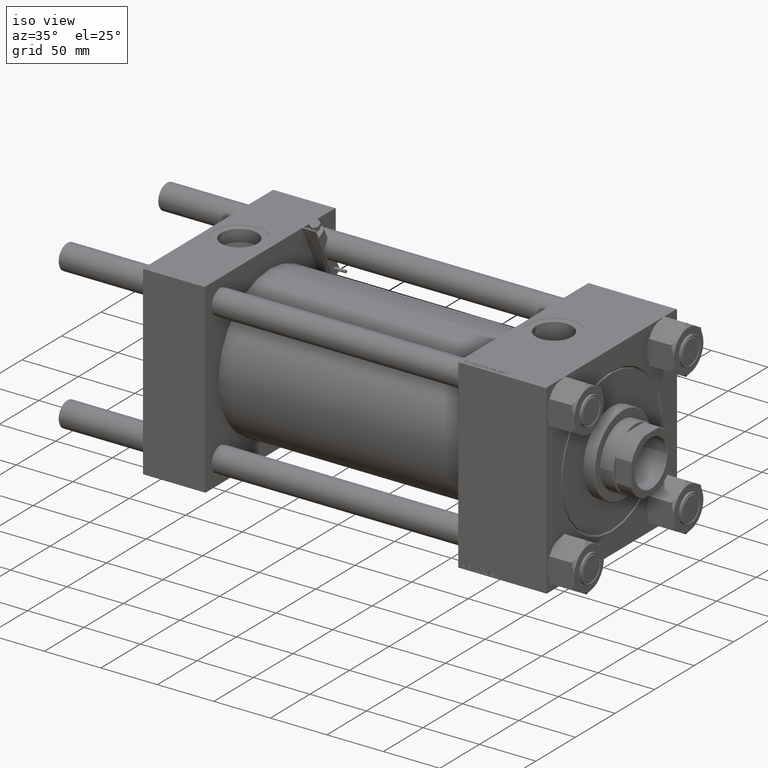
[diagram: clean part render]
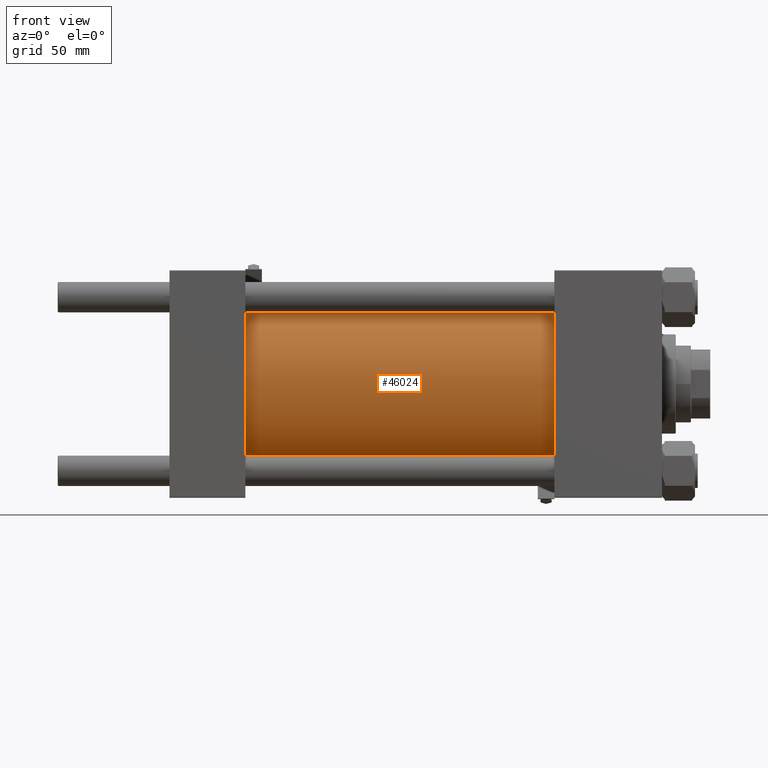
[diagram: tour spotlight — one face highlighted and labeled with its STEP entity id]
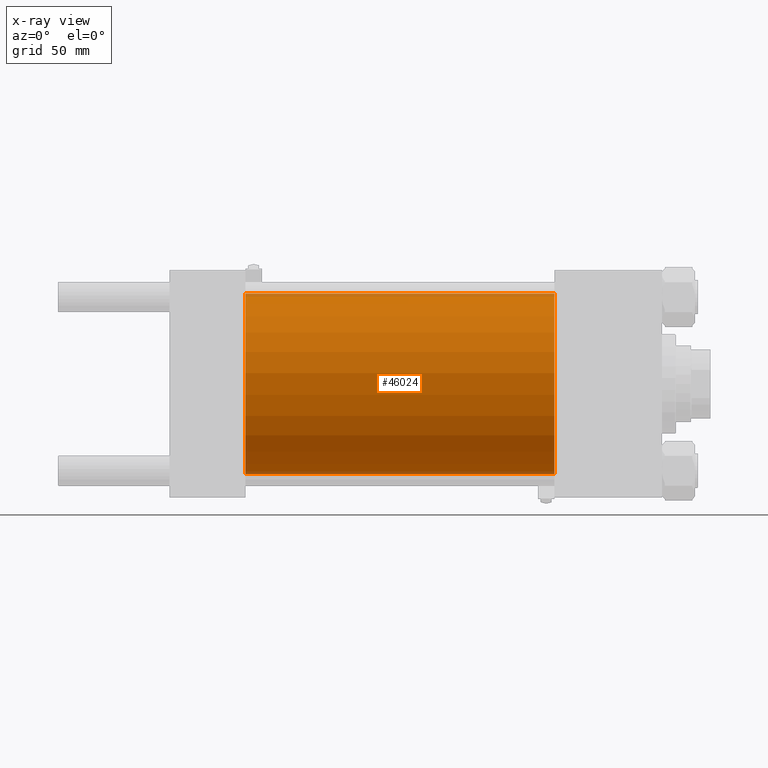
[diagram: x-ray of the same camera — body ghosted, this tour face saturated]
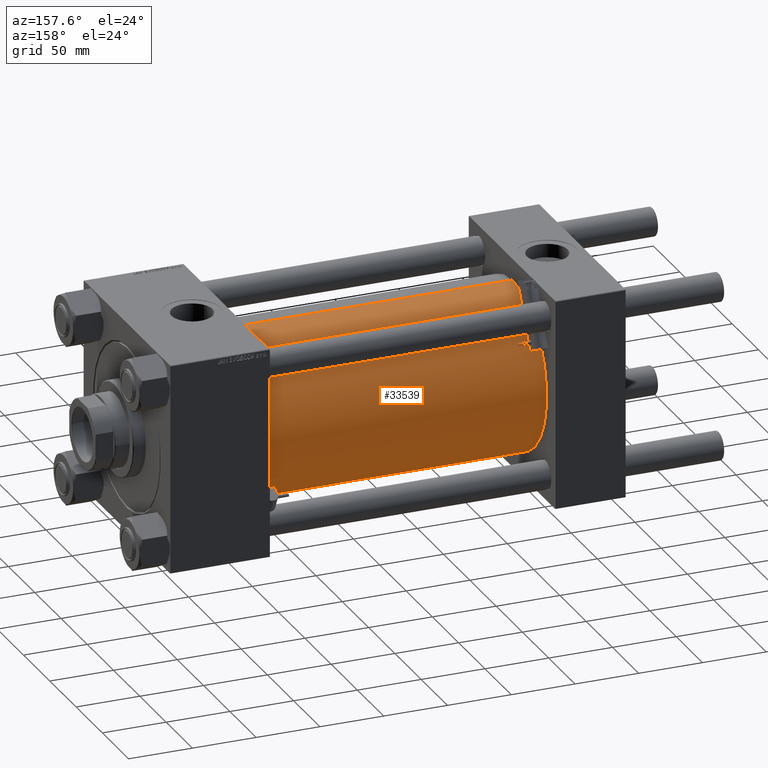
[diagram: tour spotlight — one face highlighted and labeled with its STEP entity id]
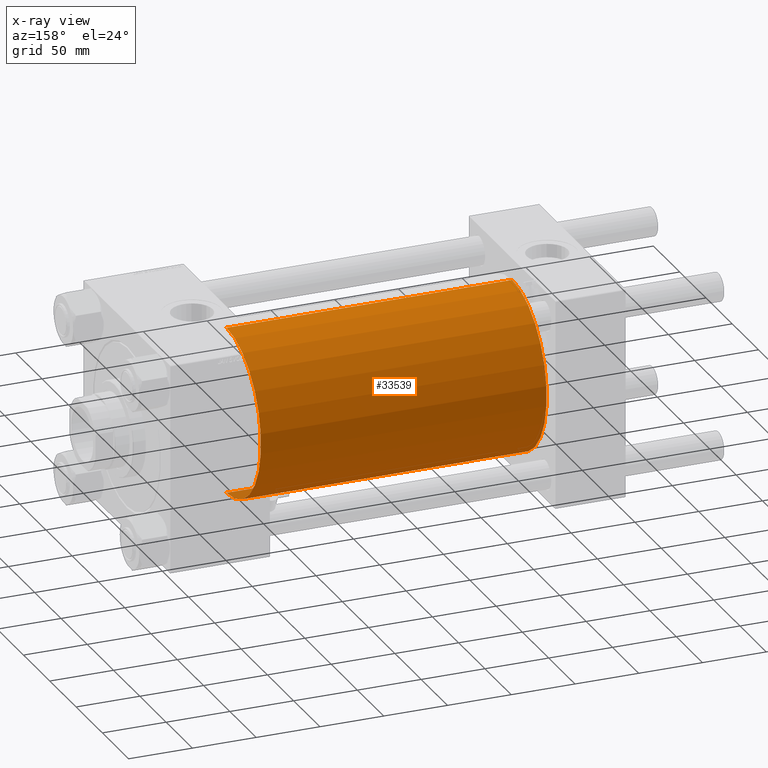
[diagram: x-ray of the same camera — body ghosted, this tour face saturated]
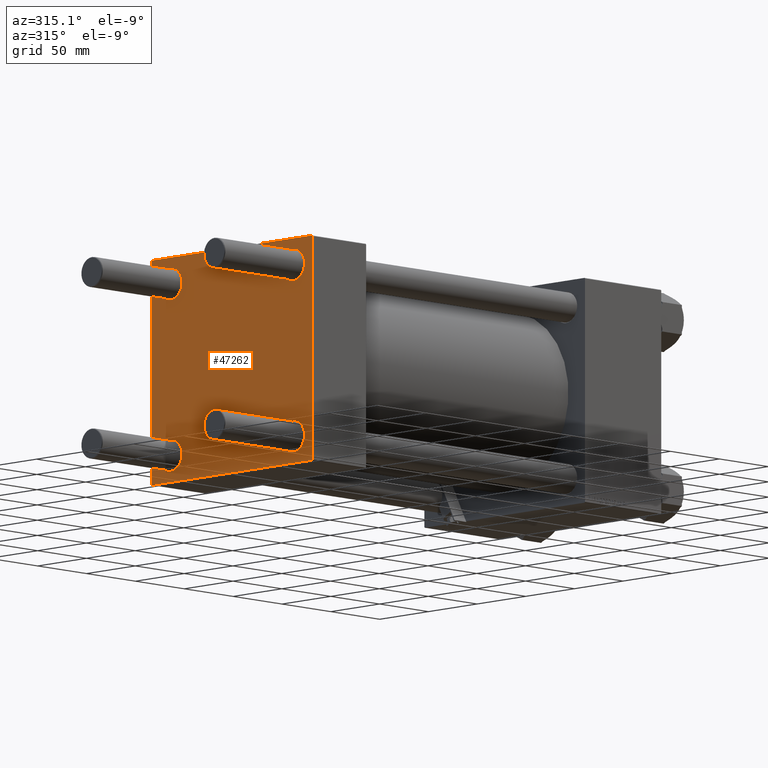
[diagram: tour spotlight — one face highlighted and labeled with its STEP entity id]
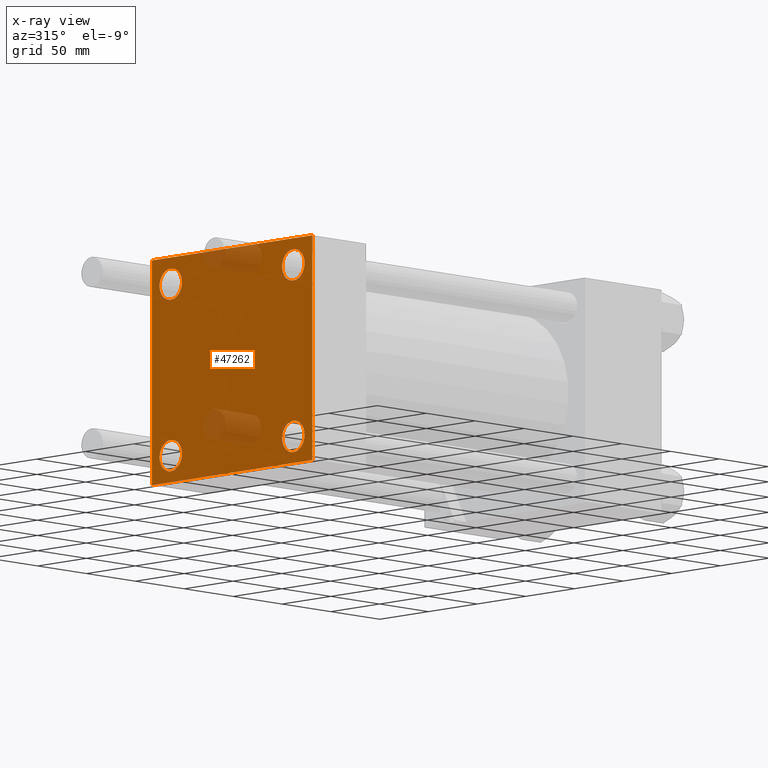
[diagram: x-ray of the same camera — body ghosted, this tour face saturated]
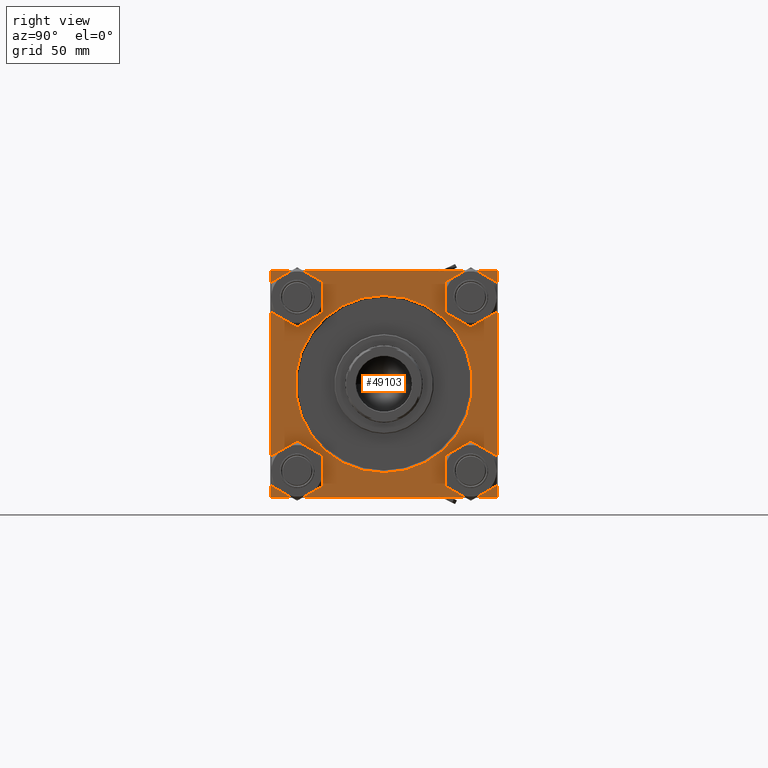
[diagram: tour spotlight — one face highlighted and labeled with its STEP entity id]
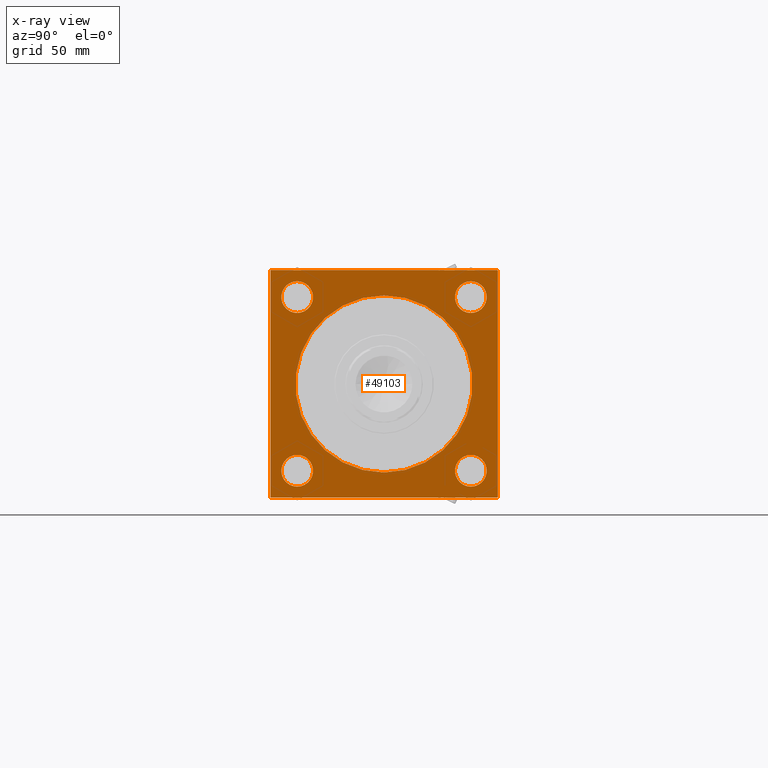
[diagram: x-ray of the same camera — body ghosted, this tour face saturated]
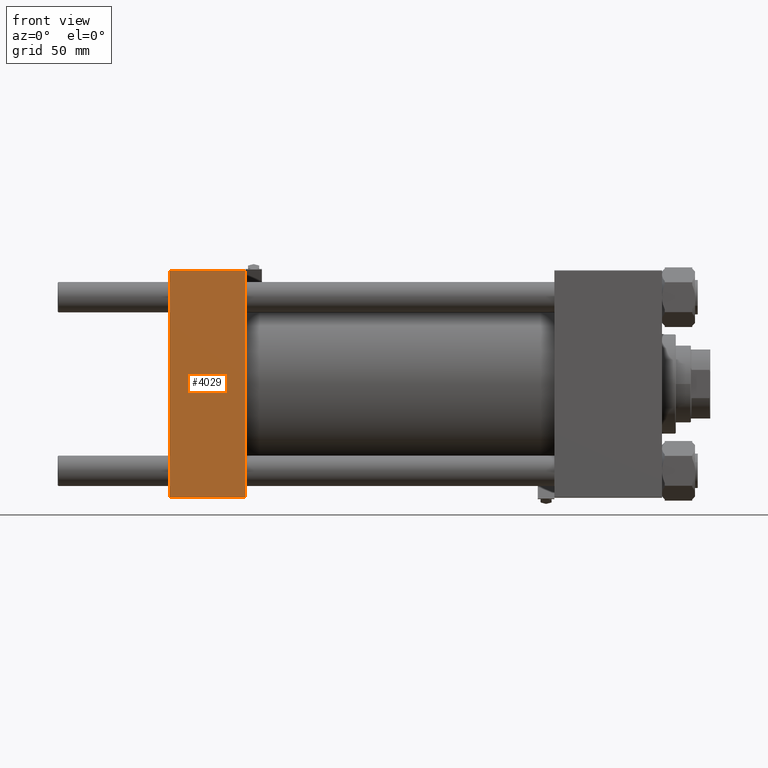
[diagram: tour spotlight — one face highlighted and labeled with its STEP entity id]
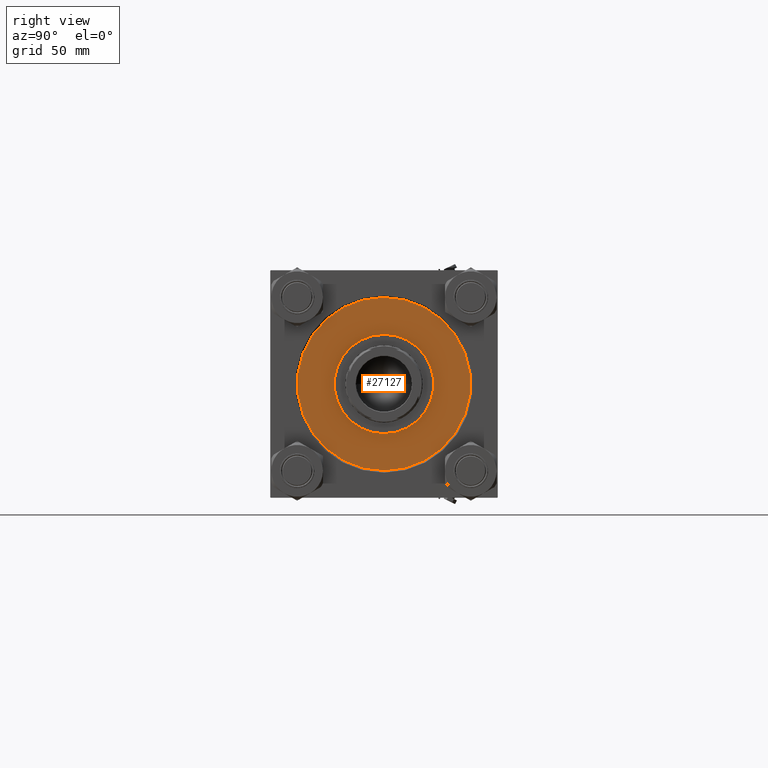
[diagram: tour spotlight — one face highlighted and labeled with its STEP entity id]
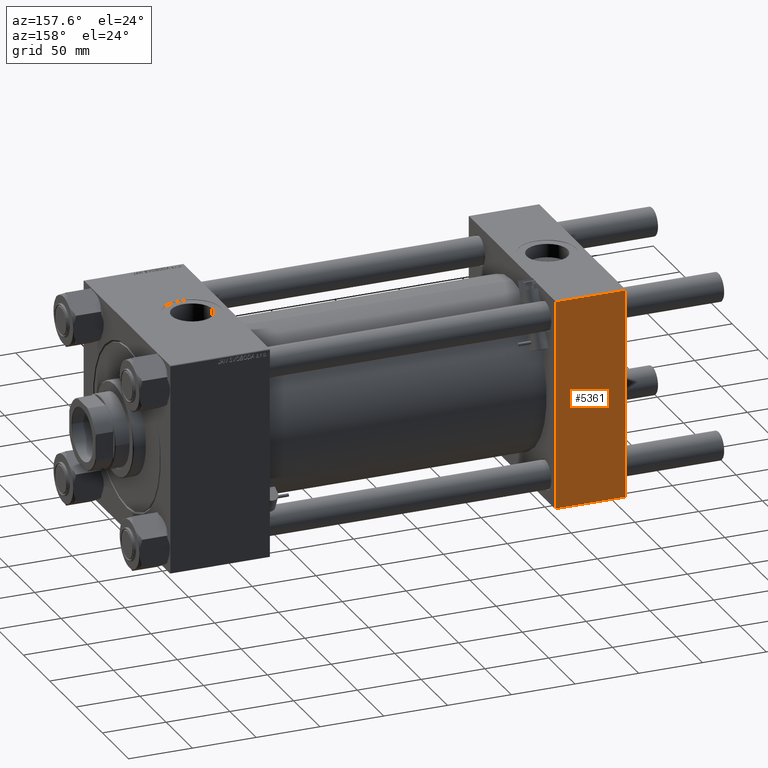
[diagram: tour spotlight — one face highlighted and labeled with its STEP entity id]
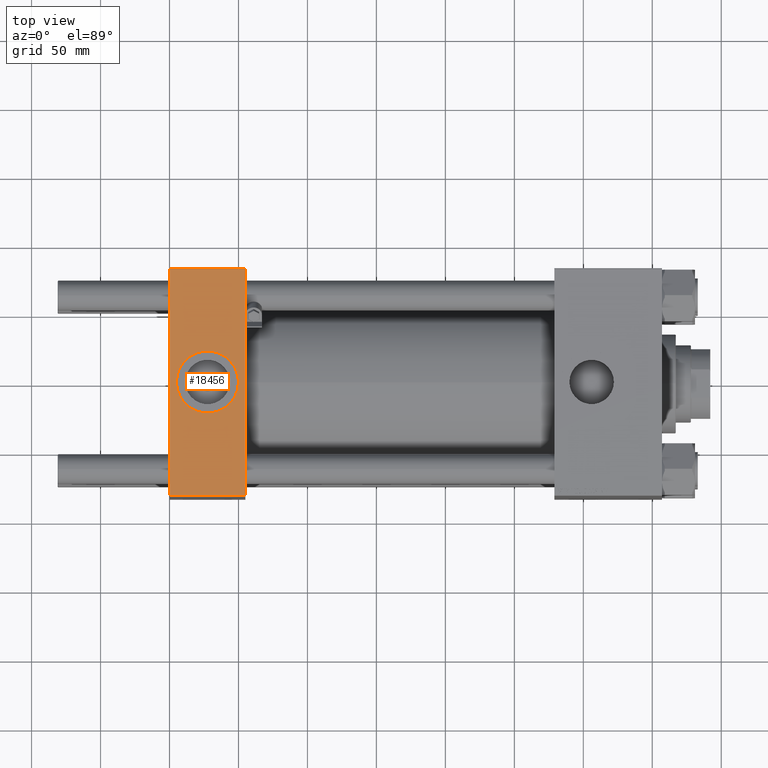
[diagram: tour spotlight — one face highlighted and labeled with its STEP entity id]
A machine part: a face-by-face anatomy tour. The part has 1246 B-rep faces; the first image is the clean iso view, then the 8 largest visible faces are spotlighted one at a time (largest first), each with its STEP entity span.

Face 1 — front view, entity #46024. An x-ray twin of the same camera follows (body ghosted, this face saturated) — the face is partly hidden behind the body. In plain terms, the highlighted cylindrical surface (partial cylindrical patch) has radius 65.5 mm, axis along (-1, -0, -0).
Definition (entity closure, byte-faithful):
#3282 = CARTESIAN_POINT ( 'NONE',  ( 279.0000000000000000, 0.000000000000000000, 65.50000000000001421 ) ) ;
#4642 = LINE ( 'NONE', #15330, #18794 ) ;
#5953 = DIRECTION ( 'NONE',  ( 1.000000000000000000, 0.000000000000000000, 0.000000000000000000 ) ) ;
#9135 = CIRCLE ( 'NONE', #49007, 65.50000000000001421 ) ;
#10547 = DIRECTION ( 'NONE',  ( 0.000000000000000000, 0.000000000000000000, 1.000000000000000000 ) ) ;
#11454 = VECTOR ( 'NONE', #12212, 1000.000000000000000 ) ;
#11649 = EDGE_CURVE ( 'NONE', #47961, #24389, #19752, .T. ) ;
#12212 = DIRECTION ( 'NONE',  ( -1.000000000000000000, -0.000000000000000000, -0.000000000000000000 ) ) ;
#12239 = VERTEX_POINT ( 'NONE', #3282 ) ;
#13757 = DIRECTION ( 'NONE',  ( 0.000000000000000000, 0.000000000000000000, -1.000000000000000000 ) ) ;
#14253 = CARTESIAN_POINT ( 'NONE',  ( 54.99999999999999289, 8.021436534415166404E-15, -65.50000000000001421 ) ) ;
#14706 = DIRECTION ( 'NONE',  ( 1.000000000000000000, -0.000000000000000000, -0.000000000000000000 ) ) ;
#15330 = CARTESIAN_POINT ( 'NONE',  ( 279.0000000000000000, 0.000000000000000000, 65.50000000000001421 ) ) ;
#16454 = AXIS2_PLACEMENT_3D ( 'NONE', #30366, #45459, #42072 ) ;
#18667 = CYLINDRICAL_SURFACE ( 'NONE', #16454, 65.50000000000001421 ) ;
#18794 = VECTOR ( 'NONE', #31177, 1000.000000000000000 ) ;
#18864 = CARTESIAN_POINT ( 'NONE',  ( 54.99999999999999289, 0.000000000000000000, 0.000000000000000000 ) ) ;
#19752 = LINE ( 'NONE', #31715, #11454 ) ;
#21210 = ORIENTED_EDGE ( 'NONE', *, *, #29813, .T. ) ;
#22748 = CIRCLE ( 'NONE', #34383, 65.50000000000001421 ) ;
#24389 = VERTEX_POINT ( 'NONE', #14253 ) ;
#28887 = ORIENTED_EDGE ( 'NONE', *, *, #50558, .F. ) ;
#29813 = EDGE_CURVE ( 'NONE', #40859, #24389, #22748, .T. ) ;
#30366 = CARTESIAN_POINT ( 'NONE',  ( 279.0000000000000000, 0.000000000000000000, 0.000000000000000000 ) ) ;
#31177 = DIRECTION ( 'NONE',  ( -1.000000000000000000, -0.000000000000000000, -0.000000000000000000 ) ) ;
#31715 = CARTESIAN_POINT ( 'NONE',  ( 279.0000000000000000, 8.021436534415166404E-15, -65.50000000000001421 ) ) ;
#34383 = AXIS2_PLACEMENT_3D ( 'NONE', #18864, #14706, #10547 ) ;
#37918 = FACE_OUTER_BOUND ( 'NONE', #44666, .T. ) ;
#37943 = CARTESIAN_POINT ( 'NONE',  ( 279.0000000000000000, 8.021436534415166404E-15, -65.50000000000001421 ) ) ;
#40859 = VERTEX_POINT ( 'NONE', #48176 ) ;
#41495 = EDGE_CURVE ( 'NONE', #12239, #40859, #4642, .T. ) ;
#42072 = DIRECTION ( 'NONE',  ( 0.000000000000000000, 0.000000000000000000, 1.000000000000000000 ) ) ;
#44666 = EDGE_LOOP ( 'NONE', ( #47553, #28887, #47849, #21210 ) ) ;
#45459 = DIRECTION ( 'NONE',  ( -1.000000000000000000, -0.000000000000000000, -0.000000000000000000 ) ) ;
#46024 = ADVANCED_FACE ( 'NONE', ( #37918 ), #18667, .T. ) ;
#47553 = ORIENTED_EDGE ( 'NONE', *, *, #11649, .F. ) ;
#47849 = ORIENTED_EDGE ( 'NONE', *, *, #41495, .T. ) ;
#47961 = VERTEX_POINT ( 'NONE', #37943 ) ;
#48176 = CARTESIAN_POINT ( 'NONE',  ( 54.99999999999999289, 0.000000000000000000, 65.50000000000001421 ) ) ;
#49007 = AXIS2_PLACEMENT_3D ( 'NONE', #49374, #5953, #13757 ) ;
#49374 = CARTESIAN_POINT ( 'NONE',  ( 279.0000000000000000, 0.000000000000000000, 0.000000000000000000 ) ) ;
#50558 = EDGE_CURVE ( 'NONE', #12239, #47961, #9135, .T. ) ;

Face 2 — auxiliary view, entity #33539. An x-ray twin of the same camera follows (body ghosted, this face saturated) — the face is partly hidden behind the body. In plain terms, the highlighted cylindrical surface (partial cylindrical patch) has radius 65.5 mm, axis along (-1, -0, -0).
Definition (entity closure, byte-faithful):
#2070 = DIRECTION ( 'NONE',  ( 1.000000000000000000, -0.000000000000000000, -0.000000000000000000 ) ) ;
#3282 = CARTESIAN_POINT ( 'NONE',  ( 279.0000000000000000, 0.000000000000000000, 65.50000000000001421 ) ) ;
#4642 = LINE ( 'NONE', #15330, #18794 ) ;
#5968 = CARTESIAN_POINT ( 'NONE',  ( 54.99999999999999289, 0.000000000000000000, 0.000000000000000000 ) ) ;
#10636 = AXIS2_PLACEMENT_3D ( 'NONE', #25134, #25641, #33470 ) ;
#11454 = VECTOR ( 'NONE', #12212, 1000.000000000000000 ) ;
#11649 = EDGE_CURVE ( 'NONE', #47961, #24389, #19752, .T. ) ;
#12212 = DIRECTION ( 'NONE',  ( -1.000000000000000000, -0.000000000000000000, -0.000000000000000000 ) ) ;
#12239 = VERTEX_POINT ( 'NONE', #3282 ) ;
#14253 = CARTESIAN_POINT ( 'NONE',  ( 54.99999999999999289, 8.021436534415166404E-15, -65.50000000000001421 ) ) ;
#15198 = CARTESIAN_POINT ( 'NONE',  ( 279.0000000000000000, 0.000000000000000000, 0.000000000000000000 ) ) ;
#15330 = CARTESIAN_POINT ( 'NONE',  ( 279.0000000000000000, 0.000000000000000000, 65.50000000000001421 ) ) ;
#15669 = ORIENTED_EDGE ( 'NONE', *, *, #32594, .T. ) ;
#18794 = VECTOR ( 'NONE', #31177, 1000.000000000000000 ) ;
#19752 = LINE ( 'NONE', #31715, #11454 ) ;
#22035 = AXIS2_PLACEMENT_3D ( 'NONE', #15198, #46118, #22189 ) ;
#22189 = DIRECTION ( 'NONE',  ( 0.000000000000000000, 0.000000000000000000, 1.000000000000000000 ) ) ;
#24389 = VERTEX_POINT ( 'NONE', #14253 ) ;
#25134 = CARTESIAN_POINT ( 'NONE',  ( 279.0000000000000000, 0.000000000000000000, 0.000000000000000000 ) ) ;
#25641 = DIRECTION ( 'NONE',  ( 1.000000000000000000, 0.000000000000000000, 0.000000000000000000 ) ) ;
#26243 = ORIENTED_EDGE ( 'NONE', *, *, #41495, .F. ) ;
#27060 = EDGE_LOOP ( 'NONE', ( #42816, #43609, #15669, #26243 ) ) ;
#27137 = CYLINDRICAL_SURFACE ( 'NONE', #22035, 65.50000000000001421 ) ;
#31177 = DIRECTION ( 'NONE',  ( -1.000000000000000000, -0.000000000000000000, -0.000000000000000000 ) ) ;
#31715 = CARTESIAN_POINT ( 'NONE',  ( 279.0000000000000000, 8.021436534415166404E-15, -65.50000000000001421 ) ) ;
#32594 = EDGE_CURVE ( 'NONE', #24389, #40859, #51086, .T. ) ;
#33470 = DIRECTION ( 'NONE',  ( 0.000000000000000000, 0.000000000000000000, -1.000000000000000000 ) ) ;
#33539 = ADVANCED_FACE ( 'NONE', ( #33914 ), #27137, .T. ) ;
#33914 = FACE_OUTER_BOUND ( 'NONE', #27060, .T. ) ;
#37943 = CARTESIAN_POINT ( 'NONE',  ( 279.0000000000000000, 8.021436534415166404E-15, -65.50000000000001421 ) ) ;
#38610 = AXIS2_PLACEMENT_3D ( 'NONE', #5968, #2070, #41832 ) ;
#40859 = VERTEX_POINT ( 'NONE', #48176 ) ;
#41495 = EDGE_CURVE ( 'NONE', #12239, #40859, #4642, .T. ) ;
#41832 = DIRECTION ( 'NONE',  ( 0.000000000000000000, 0.000000000000000000, 1.000000000000000000 ) ) ;
#42816 = ORIENTED_EDGE ( 'NONE', *, *, #44616, .F. ) ;
#43609 = ORIENTED_EDGE ( 'NONE', *, *, #11649, .T. ) ;
#44616 = EDGE_CURVE ( 'NONE', #47961, #12239, #49638, .T. ) ;
#46118 = DIRECTION ( 'NONE',  ( -1.000000000000000000, -0.000000000000000000, -0.000000000000000000 ) ) ;
#47961 = VERTEX_POINT ( 'NONE', #37943 ) ;
#48176 = CARTESIAN_POINT ( 'NONE',  ( 54.99999999999999289, 0.000000000000000000, 65.50000000000001421 ) ) ;
#49638 = CIRCLE ( 'NONE', #10636, 65.50000000000001421 ) ;
#51086 = CIRCLE ( 'NONE', #38610, 65.50000000000001421 ) ;

Face 3 — auxiliary view, entity #47262. An x-ray twin of the same camera follows (body ghosted, this face saturated) — the face is partly hidden behind the body. In plain terms, the highlighted planar face has unit normal (-1, 0, 0).
Definition (entity closure, byte-faithful):
#707 = VERTEX_POINT ( 'NONE', #7479 ) ;
#798 = VERTEX_POINT ( 'NONE', #33618 ) ;
#922 = CARTESIAN_POINT ( 'NONE',  ( 0.000000000000000000, 82.25000000000001421, -82.25000000000001421 ) ) ;
#999 = AXIS2_PLACEMENT_3D ( 'NONE', #51361, #34480, #35512 ) ;
#1175 = FACE_BOUND ( 'NONE', #51390, .T. ) ;
#1299 = CARTESIAN_POINT ( 'NONE',  ( 0.000000000000000000, 62.95000000000000284, 62.95000000000000284 ) ) ;
#1654 = VECTOR ( 'NONE', #39124, 1000.000000000000000 ) ;
#2129 = CIRCLE ( 'NONE', #49449, 11.50000000000001066 ) ;
#2522 = ORIENTED_EDGE ( 'NONE', *, *, #11713, .T. ) ;
#2605 = VERTEX_POINT ( 'NONE', #8872 ) ;
#2637 = CARTESIAN_POINT ( 'NONE',  ( 0.000000000000000000, -62.94999999999998153, 62.95000000000001705 ) ) ;
#2741 = VERTEX_POINT ( 'NONE', #35616 ) ;
#3841 = CARTESIAN_POINT ( 'NONE',  ( 0.000000000000000000, -82.49999999999997158, 82.50000000000001421 ) ) ;
#3894 = EDGE_CURVE ( 'NONE', #48933, #45628, #31716, .T. ) ;
#4656 = EDGE_CURVE ( 'NONE', #45628, #27928, #50019, .T. ) ;
#5070 = CARTESIAN_POINT ( 'NONE',  ( 0.000000000000000000, 62.95000000000000284, -62.95000000000000284 ) ) ;
#5125 = CARTESIAN_POINT ( 'NONE',  ( 0.000000000000000000, -82.25000000000000000, 82.25000000000000000 ) ) ;
#5323 = FACE_OUTER_BOUND ( 'NONE', #17578, .T. ) ;
#5418 = CARTESIAN_POINT ( 'NONE',  ( 0.000000000000000000, 82.00000000000005684, 82.50000000000002842 ) ) ;
#6438 = CARTESIAN_POINT ( 'NONE',  ( 0.000000000000000000, 82.00000000000005684, -82.49999999999997158 ) ) ;
#6442 = CARTESIAN_POINT ( 'NONE',  ( 0.000000000000000000, -62.94999999999998153, 51.45000000000000995 ) ) ;
#7040 = VERTEX_POINT ( 'NONE', #33265 ) ;
#7479 = CARTESIAN_POINT ( 'NONE',  ( 0.000000000000000000, -62.94999999999998153, 74.45000000000003126 ) ) ;
#8383 = VERTEX_POINT ( 'NONE', #23304 ) ;
#8498 = EDGE_CURVE ( 'NONE', #707, #24370, #20577, .T. ) ;
#8872 = CARTESIAN_POINT ( 'NONE',  ( 0.000000000000000000, -81.99999999999997158, 82.50000000000001421 ) ) ;
#9547 = VECTOR ( 'NONE', #16769, 1000.000000000000114 ) ;
#9644 = DIRECTION ( 'NONE',  ( 0.000000000000000000, 0.000000000000000000, 1.000000000000000000 ) ) ;
#10428 = DIRECTION ( 'NONE',  ( 0.000000000000000000, 0.000000000000000000, 1.000000000000000000 ) ) ;
#10594 = EDGE_CURVE ( 'NONE', #44494, #33226, #44623, .T. ) ;
#11074 = ORIENTED_EDGE ( 'NONE', *, *, #32358, .T. ) ;
#11713 = EDGE_CURVE ( 'NONE', #7040, #2741, #43816, .T. ) ;
#11899 = LINE ( 'NONE', #3841, #20059 ) ;
#12312 = CARTESIAN_POINT ( 'NONE',  ( 0.000000000000000000, 82.50000000000002842, -82.00000000000000000 ) ) ;
#12845 = ORIENTED_EDGE ( 'NONE', *, *, #31076, .T. ) ;
#13122 = FACE_BOUND ( 'NONE', #44390, .T. ) ;
#13247 = DIRECTION ( 'NONE',  ( 1.000000000000000000, -0.000000000000000000, -0.000000000000000000 ) ) ;
#14149 = DIRECTION ( 'NONE',  ( 0.000000000000000000, 0.000000000000000000, 1.000000000000000000 ) ) ;
#14152 = VECTOR ( 'NONE', #48292, 1000.000000000000114 ) ;
#15078 = CARTESIAN_POINT ( 'NONE',  ( 0.000000000000000000, -82.00000000000000000, -82.50000000000000000 ) ) ;
#15306 = ORIENTED_EDGE ( 'NONE', *, *, #39067, .T. ) ;
#15380 = LINE ( 'NONE', #47088, #26167 ) ;
#15610 = DIRECTION ( 'NONE',  ( 0.000000000000000000, -1.000000000000000000, -1.682156097916903588E-16 ) ) ;
#15646 = ORIENTED_EDGE ( 'NONE', *, *, #16341, .T. ) ;
#15766 = CARTESIAN_POINT ( 'NONE',  ( 0.000000000000000000, 62.95000000000000284, 74.45000000000001705 ) ) ;
#15789 = ORIENTED_EDGE ( 'NONE', *, *, #4656, .T. ) ;
#16341 = EDGE_CURVE ( 'NONE', #21670, #40755, #42753, .T. ) ;
#16740 = ORIENTED_EDGE ( 'NONE', *, *, #23601, .F. ) ;
#16769 = DIRECTION ( 'NONE',  ( -0.000000000000000000, -0.7071067811865474617, -0.7071067811865474617 ) ) ;
#17156 = DIRECTION ( 'NONE',  ( 0.000000000000000000, -1.000000000000000000, -8.410780489584519171E-17 ) ) ;
#17578 = EDGE_LOOP ( 'NONE', ( #15646, #11074, #30801, #15789, #16740, #38305, #49044, #38862 ) ) ;
#17786 = DIRECTION ( 'NONE',  ( -1.000000000000000000, 0.000000000000000000, 0.000000000000000000 ) ) ;
#19340 = EDGE_LOOP ( 'NONE', ( #38077, #35231 ) ) ;
#19381 = ORIENTED_EDGE ( 'NONE', *, *, #21883, .T. ) ;
#19763 = AXIS2_PLACEMENT_3D ( 'NONE', #24914, #48847, #20513 ) ;
#20059 = VECTOR ( 'NONE', #20196, 1000.000000000000000 ) ;
#20196 = DIRECTION ( 'NONE',  ( 0.000000000000000000, -1.682156097916903588E-16, -1.000000000000000000 ) ) ;
#20513 = DIRECTION ( 'NONE',  ( 0.000000000000000000, 0.000000000000000000, 1.000000000000000000 ) ) ;
#20577 = CIRCLE ( 'NONE', #49652, 11.50000000000001066 ) ;
#21114 = CIRCLE ( 'NONE', #31114, 11.50000000000001066 ) ;
#21170 = PLANE ( 'NONE',  #38082 ) ;
#21432 = DIRECTION ( 'NONE',  ( 1.000000000000000000, -0.000000000000000000, -0.000000000000000000 ) ) ;
#21577 = LINE ( 'NONE', #40565, #36208 ) ;
#21670 = VERTEX_POINT ( 'NONE', #48796 ) ;
#21739 = VECTOR ( 'NONE', #45852, 999.9999999999998863 ) ;
#21883 = EDGE_CURVE ( 'NONE', #29769, #8383, #35078, .T. ) ;
#22725 = CARTESIAN_POINT ( 'NONE',  ( 0.000000000000000000, 82.50000000000002842, 82.50000000000002842 ) ) ;
#23304 = CARTESIAN_POINT ( 'NONE',  ( 0.000000000000000000, 62.95000000000000284, -51.44999999999999574 ) ) ;
#23601 = EDGE_CURVE ( 'NONE', #798, #27928, #11899, .T. ) ;
#24370 = VERTEX_POINT ( 'NONE', #6442 ) ;
#24914 = CARTESIAN_POINT ( 'NONE',  ( 0.000000000000000000, -62.94999999999998153, -62.95000000000001705 ) ) ;
#25616 = CARTESIAN_POINT ( 'NONE',  ( 0.000000000000000000, 62.95000000000000284, -74.45000000000001705 ) ) ;
#26167 = VECTOR ( 'NONE', #17156, 1000.000000000000000 ) ;
#26267 = DIRECTION ( 'NONE',  ( 1.000000000000000000, -0.000000000000000000, -0.000000000000000000 ) ) ;
#26415 = ORIENTED_EDGE ( 'NONE', *, *, #8498, .T. ) ;
#26649 = CARTESIAN_POINT ( 'NONE',  ( 0.000000000000000000, -82.50000000000000000, -81.99999999999998579 ) ) ;
#27928 = VERTEX_POINT ( 'NONE', #26649 ) ;
#28472 = CARTESIAN_POINT ( 'NONE',  ( 0.000000000000000000, -62.94999999999998153, 62.95000000000001705 ) ) ;
#28642 = AXIS2_PLACEMENT_3D ( 'NONE', #1299, #13247, #29359 ) ;
#29359 = DIRECTION ( 'NONE',  ( 0.000000000000000000, 0.000000000000000000, 1.000000000000000000 ) ) ;
#29385 = DIRECTION ( 'NONE',  ( 1.000000000000000000, -0.000000000000000000, -0.000000000000000000 ) ) ;
#29769 = VERTEX_POINT ( 'NONE', #25616 ) ;
#30801 = ORIENTED_EDGE ( 'NONE', *, *, #3894, .T. ) ;
#30962 = CARTESIAN_POINT ( 'NONE',  ( 0.000000000000000000, -62.94999999999998153, -62.95000000000001705 ) ) ;
#31076 = EDGE_CURVE ( 'NONE', #24370, #707, #21114, .T. ) ;
#31114 = AXIS2_PLACEMENT_3D ( 'NONE', #2637, #26267, #10428 ) ;
#31211 = DIRECTION ( 'NONE',  ( 0.000000000000000000, 0.000000000000000000, 1.000000000000000000 ) ) ;
#31360 = DIRECTION ( 'NONE',  ( 0.000000000000000000, 0.000000000000000000, 1.000000000000000000 ) ) ;
#31716 = LINE ( 'NONE', #39512, #50781 ) ;
#31875 = DIRECTION ( 'NONE',  ( 1.000000000000000000, -0.000000000000000000, -0.000000000000000000 ) ) ;
#32358 = EDGE_CURVE ( 'NONE', #40755, #48933, #36523, .T. ) ;
#32661 = EDGE_CURVE ( 'NONE', #33226, #44494, #47747, .T. ) ;
#32733 = EDGE_LOOP ( 'NONE', ( #26415, #12845 ) ) ;
#33142 = DIRECTION ( 'NONE',  ( 0.000000000000000000, 0.000000000000000000, 1.000000000000000000 ) ) ;
#33226 = VERTEX_POINT ( 'NONE', #15766 ) ;
#33265 = CARTESIAN_POINT ( 'NONE',  ( 0.000000000000000000, -62.94999999999998153, -74.45000000000003126 ) ) ;
#33306 = CARTESIAN_POINT ( 'NONE',  ( 0.000000000000000000, 62.95000000000000284, 62.95000000000000284 ) ) ;
#33394 = CARTESIAN_POINT ( 'NONE',  ( 0.000000000000000000, -82.25000000000115108, -82.24999999999886313 ) ) ;
#33618 = CARTESIAN_POINT ( 'NONE',  ( 0.000000000000000000, -82.49999999999997158, 82.00000000000001421 ) ) ;
#34480 = DIRECTION ( 'NONE',  ( 1.000000000000000000, -0.000000000000000000, -0.000000000000000000 ) ) ;
#35078 = CIRCLE ( 'NONE', #999, 11.50000000000001066 ) ;
#35135 = DIRECTION ( 'NONE',  ( 1.000000000000000000, -0.000000000000000000, -0.000000000000000000 ) ) ;
#35231 = ORIENTED_EDGE ( 'NONE', *, *, #10594, .T. ) ;
#35512 = DIRECTION ( 'NONE',  ( 0.000000000000000000, 0.000000000000000000, 1.000000000000000000 ) ) ;
#35616 = CARTESIAN_POINT ( 'NONE',  ( 0.000000000000000000, -62.94999999999998153, -51.45000000000000995 ) ) ;
#36033 = CARTESIAN_POINT ( 'NONE',  ( 0.000000000000000000, 0.000000000000000000, 0.000000000000000000 ) ) ;
#36208 = VECTOR ( 'NONE', #41080, 1000.000000000000114 ) ;
#36523 = LINE ( 'NONE', #922, #9547 ) ;
#36753 = ORIENTED_EDGE ( 'NONE', *, *, #38349, .T. ) ;
#36789 = FACE_BOUND ( 'NONE', #32733, .T. ) ;
#36973 = AXIS2_PLACEMENT_3D ( 'NONE', #5070, #21432, #33142 ) ;
#37088 = LINE ( 'NONE', #5125, #14152 ) ;
#37280 = EDGE_CURVE ( 'NONE', #48862, #2605, #15380, .T. ) ;
#38077 = ORIENTED_EDGE ( 'NONE', *, *, #32661, .T. ) ;
#38082 = AXIS2_PLACEMENT_3D ( 'NONE', #36033, #17786, #14149 ) ;
#38305 = ORIENTED_EDGE ( 'NONE', *, *, #50881, .T. ) ;
#38349 = EDGE_CURVE ( 'NONE', #2741, #7040, #2129, .T. ) ;
#38862 = ORIENTED_EDGE ( 'NONE', *, *, #40337, .T. ) ;
#39067 = EDGE_CURVE ( 'NONE', #8383, #29769, #44464, .T. ) ;
#39124 = DIRECTION ( 'NONE',  ( 0.000000000000000000, 0.000000000000000000, -1.000000000000000000 ) ) ;
#39512 = CARTESIAN_POINT ( 'NONE',  ( 0.000000000000000000, 82.50000000000002842, -82.49999999999997158 ) ) ;
#40337 = EDGE_CURVE ( 'NONE', #48862, #21670, #21577, .T. ) ;
#40565 = CARTESIAN_POINT ( 'NONE',  ( 0.000000000000000000, 82.25000000000002842, 82.25000000000002842 ) ) ;
#40755 = VERTEX_POINT ( 'NONE', #12312 ) ;
#41080 = DIRECTION ( 'NONE',  ( 0.000000000000000000, 0.7071067811865474617, -0.7071067811865474617 ) ) ;
#42753 = LINE ( 'NONE', #22725, #1654 ) ;
#43816 = CIRCLE ( 'NONE', #19763, 11.50000000000001066 ) ;
#44390 = EDGE_LOOP ( 'NONE', ( #15306, #19381 ) ) ;
#44464 = CIRCLE ( 'NONE', #36973, 11.50000000000001066 ) ;
#44494 = VERTEX_POINT ( 'NONE', #50154 ) ;
#44623 = CIRCLE ( 'NONE', #51282, 11.50000000000001066 ) ;
#44831 = FACE_BOUND ( 'NONE', #19340, .T. ) ;
#45628 = VERTEX_POINT ( 'NONE', #15078 ) ;
#45852 = DIRECTION ( 'NONE',  ( 0.000000000000000000, -0.7071067811865376918, 0.7071067811865574537 ) ) ;
#47088 = CARTESIAN_POINT ( 'NONE',  ( 0.000000000000000000, 82.50000000000002842, 82.50000000000002842 ) ) ;
#47262 = ADVANCED_FACE ( 'NONE', ( #36789, #1175, #13122, #44831, #5323 ), #21170, .T. ) ;
#47747 = CIRCLE ( 'NONE', #28642, 11.50000000000001066 ) ;
#48292 = DIRECTION ( 'NONE',  ( -0.000000000000000000, 0.7071067811865474617, 0.7071067811865474617 ) ) ;
#48796 = CARTESIAN_POINT ( 'NONE',  ( 0.000000000000000000, 82.50000000000002842, 82.00000000000005684 ) ) ;
#48847 = DIRECTION ( 'NONE',  ( 1.000000000000000000, -0.000000000000000000, -0.000000000000000000 ) ) ;
#48862 = VERTEX_POINT ( 'NONE', #5418 ) ;
#48933 = VERTEX_POINT ( 'NONE', #6438 ) ;
#49044 = ORIENTED_EDGE ( 'NONE', *, *, #37280, .F. ) ;
#49449 = AXIS2_PLACEMENT_3D ( 'NONE', #30962, #35135, #31211 ) ;
#49652 = AXIS2_PLACEMENT_3D ( 'NONE', #28472, #31875, #31360 ) ;
#50019 = LINE ( 'NONE', #33394, #21739 ) ;
#50154 = CARTESIAN_POINT ( 'NONE',  ( 0.000000000000000000, 62.95000000000000284, 51.44999999999999574 ) ) ;
#50781 = VECTOR ( 'NONE', #15610, 1000.000000000000000 ) ;
#50881 = EDGE_CURVE ( 'NONE', #798, #2605, #37088, .T. ) ;
#51282 = AXIS2_PLACEMENT_3D ( 'NONE', #33306, #29385, #9644 ) ;
#51361 = CARTESIAN_POINT ( 'NONE',  ( 0.000000000000000000, 62.95000000000000284, -62.95000000000000284 ) ) ;
#51390 = EDGE_LOOP ( 'NONE', ( #36753, #2522 ) ) ;

Face 4 — right view, entity #49103. An x-ray twin of the same camera follows (body ghosted, this face saturated) — the face is partly hidden behind the body. In plain terms, the highlighted planar face has unit normal (-1, 0, 0).
Definition (entity closure, byte-faithful):
#57 = VERTEX_POINT ( 'NONE', #27090 ) ;
#662 = LINE ( 'NONE', #36028, #44626 ) ;
#852 = EDGE_CURVE ( 'NONE', #12606, #9095, #6678, .T. ) ;
#2040 = ORIENTED_EDGE ( 'NONE', *, *, #47521, .T. ) ;
#2196 = DIRECTION ( 'NONE',  ( 0.000000000000000000, 0.000000000000000000, 1.000000000000000000 ) ) ;
#2492 = EDGE_CURVE ( 'NONE', #31787, #27956, #9126, .T. ) ;
#2939 = FACE_BOUND ( 'NONE', #10920, .T. ) ;
#4123 = ORIENTED_EDGE ( 'NONE', *, *, #14334, .T. ) ;
#4240 = VECTOR ( 'NONE', #45001, 999.9999999999998863 ) ;
#4314 = CARTESIAN_POINT ( 'NONE',  ( 357.0000000000000568, 82.00000000000001421, 82.50000000000000000 ) ) ;
#4623 = AXIS2_PLACEMENT_3D ( 'NONE', #7822, #38757, #23154 ) ;
#4801 = AXIS2_PLACEMENT_3D ( 'NONE', #13961, #28778, #29301 ) ;
#4825 = ORIENTED_EDGE ( 'NONE', *, *, #23836, .T. ) ;
#4866 = DIRECTION ( 'NONE',  ( -1.000000000000000000, -0.000000000000000000, 0.000000000000000000 ) ) ;
#5084 = VERTEX_POINT ( 'NONE', #30698 ) ;
#5991 = EDGE_CURVE ( 'NONE', #6577, #57, #35395, .T. ) ;
#6340 = CARTESIAN_POINT ( 'NONE',  ( 357.0000000000000568, -62.94999999999998153, -62.95000000000001705 ) ) ;
#6386 = CIRCLE ( 'NONE', #42096, 11.50000000000006573 ) ;
#6577 = VERTEX_POINT ( 'NONE', #50100 ) ;
#6678 = CIRCLE ( 'NONE', #10850, 64.25000000000008527 ) ;
#7157 = DIRECTION ( 'NONE',  ( -1.000000000000000000, -0.000000000000000000, 0.000000000000000000 ) ) ;
#7253 = EDGE_CURVE ( 'NONE', #6577, #47224, #662, .T. ) ;
#7338 = CARTESIAN_POINT ( 'NONE',  ( 357.0000000000000568, -81.99999999999998579, -82.50000000000002842 ) ) ;
#7735 = CARTESIAN_POINT ( 'NONE',  ( 357.0000000000000568, 82.50000000000001421, -82.00000000000002842 ) ) ;
#7822 = CARTESIAN_POINT ( 'NONE',  ( 357.0000000000000568, -62.94999999999998153, 62.95000000000001705 ) ) ;
#7833 = DIRECTION ( 'NONE',  ( 0.000000000000000000, 0.000000000000000000, -1.000000000000000000 ) ) ;
#7923 = VERTEX_POINT ( 'NONE', #37431 ) ;
#8145 = CARTESIAN_POINT ( 'NONE',  ( 357.0000000000000568, -62.94999999999998153, 74.45000000000008811 ) ) ;
#8160 = ORIENTED_EDGE ( 'NONE', *, *, #2492, .T. ) ;
#8194 = VECTOR ( 'NONE', #8234, 1000.000000000000114 ) ;
#8234 = DIRECTION ( 'NONE',  ( -0.000000000000000000, 0.7071067811865474617, 0.7071067811865474617 ) ) ;
#8296 = AXIS2_PLACEMENT_3D ( 'NONE', #18786, #30481, #19315 ) ;
#9095 = VERTEX_POINT ( 'NONE', #22011 ) ;
#9126 = LINE ( 'NONE', #48397, #4240 ) ;
#9421 = LINE ( 'NONE', #25256, #26654 ) ;
#9452 = CARTESIAN_POINT ( 'NONE',  ( 357.0000000000000568, 0.000000000000000000, 0.000000000000000000 ) ) ;
#10850 = AXIS2_PLACEMENT_3D ( 'NONE', #9452, #21142, #48971 ) ;
#10893 = ORIENTED_EDGE ( 'NONE', *, *, #5991, .F. ) ;
#10905 = DIRECTION ( 'NONE',  ( -1.000000000000000000, -0.000000000000000000, 0.000000000000000000 ) ) ;
#10920 = EDGE_LOOP ( 'NONE', ( #29614, #23057 ) ) ;
#11411 = CARTESIAN_POINT ( 'NONE',  ( 357.0000000000000568, 62.95000000000000284, 62.95000000000000284 ) ) ;
#11469 = VERTEX_POINT ( 'NONE', #17699 ) ;
#12606 = VERTEX_POINT ( 'NONE', #39246 ) ;
#13360 = DIRECTION ( 'NONE',  ( 0.000000000000000000, -1.682156097916903834E-16, -1.000000000000000000 ) ) ;
#13806 = EDGE_CURVE ( 'NONE', #44858, #57, #43345, .T. ) ;
#13961 = CARTESIAN_POINT ( 'NONE',  ( 357.0000000000000568, 62.95000000000000284, -62.95000000000000284 ) ) ;
#14334 = EDGE_CURVE ( 'NONE', #25794, #30980, #28798, .T. ) ;
#14535 = DIRECTION ( 'NONE',  ( 0.000000000000000000, 0.000000000000000000, 1.000000000000000000 ) ) ;
#14562 = CIRCLE ( 'NONE', #4623, 11.50000000000006573 ) ;
#14975 = VECTOR ( 'NONE', #15047, 1000.000000000000000 ) ;
#15047 = DIRECTION ( 'NONE',  ( 0.000000000000000000, -1.000000000000000000, 0.000000000000000000 ) ) ;
#15088 = DIRECTION ( 'NONE',  ( 0.000000000000000000, 0.000000000000000000, 1.000000000000000000 ) ) ;
#15162 = FACE_BOUND ( 'NONE', #41820, .T. ) ;
#16190 = CIRCLE ( 'NONE', #20338, 11.50000000000006573 ) ;
#16199 = DIRECTION ( 'NONE',  ( -1.000000000000000000, -0.000000000000000000, 0.000000000000000000 ) ) ;
#17593 = CARTESIAN_POINT ( 'NONE',  ( 357.0000000000000568, 62.95000000000000284, 62.95000000000000284 ) ) ;
#17699 = CARTESIAN_POINT ( 'NONE',  ( 357.0000000000000568, -62.94999999999998153, -51.44999999999995310 ) ) ;
#18149 = VERTEX_POINT ( 'NONE', #43935 ) ;
#18749 = CARTESIAN_POINT ( 'NONE',  ( 357.0000000000000568, 82.50000000000001421, 82.50000000000000000 ) ) ;
#18786 = CARTESIAN_POINT ( 'NONE',  ( 357.0000000000000568, 0.000000000000000000, 0.000000000000000000 ) ) ;
#18966 = ORIENTED_EDGE ( 'NONE', *, *, #32058, .T. ) ;
#19315 = DIRECTION ( 'NONE',  ( 0.000000000000000000, 0.000000000000000000, 1.000000000000000000 ) ) ;
#19453 = CARTESIAN_POINT ( 'NONE',  ( 357.0000000000000568, -82.50000000000000000, -82.00000000000002842 ) ) ;
#19488 = VERTEX_POINT ( 'NONE', #27972 ) ;
#20023 = ORIENTED_EDGE ( 'NONE', *, *, #44678, .T. ) ;
#20338 = AXIS2_PLACEMENT_3D ( 'NONE', #17593, #4866, #36841 ) ;
#20521 = ORIENTED_EDGE ( 'NONE', *, *, #50684, .F. ) ;
#20566 = CIRCLE ( 'NONE', #36356, 11.50000000000006573 ) ;
#20862 = CARTESIAN_POINT ( 'NONE',  ( 357.0000000000000568, 62.95000000000000284, -62.95000000000000284 ) ) ;
#20899 = LINE ( 'NONE', #41169, #24413 ) ;
#21142 = DIRECTION ( 'NONE',  ( -1.000000000000000000, -0.000000000000000000, 0.000000000000000000 ) ) ;
#21364 = CARTESIAN_POINT ( 'NONE',  ( 357.0000000000000568, 62.95000000000000284, 51.44999999999993889 ) ) ;
#21683 = AXIS2_PLACEMENT_3D ( 'NONE', #23005, #7157, #26647 ) ;
#21776 = VECTOR ( 'NONE', #7833, 1000.000000000000000 ) ;
#22011 = CARTESIAN_POINT ( 'NONE',  ( 357.0000000000000568, 7.868355684521755357E-15, 64.25000000000008527 ) ) ;
#23005 = CARTESIAN_POINT ( 'NONE',  ( 357.0000000000000568, -62.94999999999998153, 62.95000000000001705 ) ) ;
#23057 = ORIENTED_EDGE ( 'NONE', *, *, #42819, .T. ) ;
#23154 = DIRECTION ( 'NONE',  ( 0.000000000000000000, 0.000000000000000000, 1.000000000000000000 ) ) ;
#23261 = EDGE_CURVE ( 'NONE', #47224, #31787, #9421, .T. ) ;
#23363 = VERTEX_POINT ( 'NONE', #21364 ) ;
#23836 = EDGE_CURVE ( 'NONE', #18149, #44215, #50760, .T. ) ;
#24413 = VECTOR ( 'NONE', #13360, 1000.000000000000000 ) ;
#25256 = CARTESIAN_POINT ( 'NONE',  ( 357.0000000000000568, 82.50000000000001421, 82.50000000000000000 ) ) ;
#25528 = CIRCLE ( 'NONE', #38008, 64.25000000000008527 ) ;
#25794 = VERTEX_POINT ( 'NONE', #19453 ) ;
#26209 = CARTESIAN_POINT ( 'NONE',  ( 357.0000000000000568, 82.50000000000001421, -82.50000000000002842 ) ) ;
#26647 = DIRECTION ( 'NONE',  ( 0.000000000000000000, 0.000000000000000000, 1.000000000000000000 ) ) ;
#26654 = VECTOR ( 'NONE', #37741, 1000.000000000000000 ) ;
#26673 = CARTESIAN_POINT ( 'NONE',  ( 357.0000000000000568, -81.99999999999995737, 82.49999999999997158 ) ) ;
#27090 = CARTESIAN_POINT ( 'NONE',  ( 357.0000000000000568, 82.50000000000001421, -82.00000000000002842 ) ) ;
#27490 = ORIENTED_EDGE ( 'NONE', *, *, #44506, .T. ) ;
#27927 = CARTESIAN_POINT ( 'NONE',  ( 357.0000000000000568, -82.49999999999997158, 81.99999999999997158 ) ) ;
#27956 = VERTEX_POINT ( 'NONE', #27927 ) ;
#27972 = CARTESIAN_POINT ( 'NONE',  ( 357.0000000000000568, -62.94999999999998153, -74.45000000000008811 ) ) ;
#28778 = DIRECTION ( 'NONE',  ( -1.000000000000000000, -0.000000000000000000, 0.000000000000000000 ) ) ;
#28798 = LINE ( 'NONE', #7338, #36431 ) ;
#29301 = DIRECTION ( 'NONE',  ( 0.000000000000000000, 0.000000000000000000, 1.000000000000000000 ) ) ;
#29614 = ORIENTED_EDGE ( 'NONE', *, *, #47279, .T. ) ;
#29661 = CARTESIAN_POINT ( 'NONE',  ( 357.0000000000000568, 62.95000000000000284, -74.45000000000007390 ) ) ;
#30010 = EDGE_CURVE ( 'NONE', #27956, #25794, #20899, .T. ) ;
#30481 = DIRECTION ( 'NONE',  ( -1.000000000000000000, -0.000000000000000000, 0.000000000000000000 ) ) ;
#30698 = CARTESIAN_POINT ( 'NONE',  ( 357.0000000000000568, 62.95000000000000284, -51.44999999999993889 ) ) ;
#30849 = CARTESIAN_POINT ( 'NONE',  ( 357.0000000000000568, 82.00000000000001421, -82.50000000000002842 ) ) ;
#30980 = VERTEX_POINT ( 'NONE', #38825 ) ;
#31006 = FACE_OUTER_BOUND ( 'NONE', #35581, .T. ) ;
#31135 = VERTEX_POINT ( 'NONE', #29661 ) ;
#31437 = EDGE_LOOP ( 'NONE', ( #2040, #20023 ) ) ;
#31787 = VERTEX_POINT ( 'NONE', #26673 ) ;
#32055 = DIRECTION ( 'NONE',  ( 0.000000000000000000, 0.000000000000000000, 1.000000000000000000 ) ) ;
#32058 = EDGE_CURVE ( 'NONE', #7923, #23363, #16190, .T. ) ;
#32296 = AXIS2_PLACEMENT_3D ( 'NONE', #20862, #16199, #32055 ) ;
#33651 = DIRECTION ( 'NONE',  ( -1.000000000000000000, -0.000000000000000000, 0.000000000000000000 ) ) ;
#33691 = EDGE_LOOP ( 'NONE', ( #4825, #36242 ) ) ;
#34142 = FACE_BOUND ( 'NONE', #33691, .T. ) ;
#34660 = FACE_BOUND ( 'NONE', #49553, .T. ) ;
#34807 = LINE ( 'NONE', #26209, #14975 ) ;
#35093 = CARTESIAN_POINT ( 'NONE',  ( 357.0000000000000568, 0.000000000000000000, 0.000000000000000000 ) ) ;
#35395 = LINE ( 'NONE', #18749, #21776 ) ;
#35581 = EDGE_LOOP ( 'NONE', ( #45370, #4123, #20521, #47277, #10893, #46580, #45127, #8160 ) ) ;
#36028 = CARTESIAN_POINT ( 'NONE',  ( 357.0000000000000568, 82.00000000000001421, 82.50000000000000000 ) ) ;
#36242 = ORIENTED_EDGE ( 'NONE', *, *, #38287, .T. ) ;
#36356 = AXIS2_PLACEMENT_3D ( 'NONE', #11411, #43127, #14535 ) ;
#36424 = CIRCLE ( 'NONE', #43078, 11.50000000000006573 ) ;
#36431 = VECTOR ( 'NONE', #40777, 999.9999999999998863 ) ;
#36784 = DIRECTION ( 'NONE',  ( 0.000000000000000000, -0.7071067811865474617, 0.7071067811865474617 ) ) ;
#36841 = DIRECTION ( 'NONE',  ( 0.000000000000000000, 0.000000000000000000, 1.000000000000000000 ) ) ;
#37431 = CARTESIAN_POINT ( 'NONE',  ( 357.0000000000000568, 62.95000000000000284, 74.45000000000007390 ) ) ;
#37741 = DIRECTION ( 'NONE',  ( 0.000000000000000000, -1.000000000000000000, -1.682156097916904081E-16 ) ) ;
#38008 = AXIS2_PLACEMENT_3D ( 'NONE', #35093, #10905, #45990 ) ;
#38287 = EDGE_CURVE ( 'NONE', #44215, #18149, #14562, .T. ) ;
#38757 = DIRECTION ( 'NONE',  ( -1.000000000000000000, -0.000000000000000000, 0.000000000000000000 ) ) ;
#38825 = CARTESIAN_POINT ( 'NONE',  ( 357.0000000000000568, -81.99999999999998579, -82.50000000000002842 ) ) ;
#39246 = CARTESIAN_POINT ( 'NONE',  ( 357.0000000000000568, 0.000000000000000000, -64.25000000000008527 ) ) ;
#40777 = DIRECTION ( 'NONE',  ( 0.000000000000000000, 0.7071067811865574537, -0.7071067811865376918 ) ) ;
#41169 = CARTESIAN_POINT ( 'NONE',  ( 357.0000000000000568, -82.49999999999997158, 82.49999999999997158 ) ) ;
#41820 = EDGE_LOOP ( 'NONE', ( #27490, #18966 ) ) ;
#42096 = AXIS2_PLACEMENT_3D ( 'NONE', #46535, #50435, #15088 ) ;
#42737 = ORIENTED_EDGE ( 'NONE', *, *, #44425, .T. ) ;
#42819 = EDGE_CURVE ( 'NONE', #11469, #19488, #6386, .T. ) ;
#43078 = AXIS2_PLACEMENT_3D ( 'NONE', #6340, #33651, #2196 ) ;
#43127 = DIRECTION ( 'NONE',  ( -1.000000000000000000, -0.000000000000000000, 0.000000000000000000 ) ) ;
#43345 = LINE ( 'NONE', #7735, #8194 ) ;
#43935 = CARTESIAN_POINT ( 'NONE',  ( 357.0000000000000568, -62.94999999999998153, 51.44999999999995310 ) ) ;
#44215 = VERTEX_POINT ( 'NONE', #8145 ) ;
#44425 = EDGE_CURVE ( 'NONE', #9095, #12606, #25528, .T. ) ;
#44506 = EDGE_CURVE ( 'NONE', #23363, #7923, #20566, .T. ) ;
#44626 = VECTOR ( 'NONE', #36784, 1000.000000000000114 ) ;
#44655 = CIRCLE ( 'NONE', #4801, 11.50000000000006573 ) ;
#44678 = EDGE_CURVE ( 'NONE', #5084, #31135, #44655, .T. ) ;
#44797 = ORIENTED_EDGE ( 'NONE', *, *, #852, .T. ) ;
#44858 = VERTEX_POINT ( 'NONE', #30849 ) ;
#45001 = DIRECTION ( 'NONE',  ( -0.000000000000000000, -0.7071067811865574537, -0.7071067811865376918 ) ) ;
#45127 = ORIENTED_EDGE ( 'NONE', *, *, #23261, .T. ) ;
#45370 = ORIENTED_EDGE ( 'NONE', *, *, #30010, .T. ) ;
#45990 = DIRECTION ( 'NONE',  ( 0.000000000000000000, 0.000000000000000000, 1.000000000000000000 ) ) ;
#46535 = CARTESIAN_POINT ( 'NONE',  ( 357.0000000000000568, -62.94999999999998153, -62.95000000000001705 ) ) ;
#46580 = ORIENTED_EDGE ( 'NONE', *, *, #7253, .T. ) ;
#47224 = VERTEX_POINT ( 'NONE', #4314 ) ;
#47277 = ORIENTED_EDGE ( 'NONE', *, *, #13806, .T. ) ;
#47279 = EDGE_CURVE ( 'NONE', #19488, #11469, #36424, .T. ) ;
#47521 = EDGE_CURVE ( 'NONE', #31135, #5084, #50568, .T. ) ;
#48397 = CARTESIAN_POINT ( 'NONE',  ( 357.0000000000000568, -82.49999999999997158, 81.99999999999997158 ) ) ;
#48971 = DIRECTION ( 'NONE',  ( 0.000000000000000000, 0.000000000000000000, 1.000000000000000000 ) ) ;
#49103 = ADVANCED_FACE ( 'NONE', ( #2939, #50510, #15162, #34142, #34660, #31006 ), #50247, .F. ) ;
#49553 = EDGE_LOOP ( 'NONE', ( #44797, #42737 ) ) ;
#50100 = CARTESIAN_POINT ( 'NONE',  ( 357.0000000000000568, 82.50000000000001421, 82.00000000000000000 ) ) ;
#50247 = PLANE ( 'NONE',  #8296 ) ;
#50435 = DIRECTION ( 'NONE',  ( -1.000000000000000000, -0.000000000000000000, 0.000000000000000000 ) ) ;
#50510 = FACE_BOUND ( 'NONE', #31437, .T. ) ;
#50568 = CIRCLE ( 'NONE', #32296, 11.50000000000006573 ) ;
#50684 = EDGE_CURVE ( 'NONE', #44858, #30980, #34807, .T. ) ;
#50760 = CIRCLE ( 'NONE', #21683, 11.50000000000006573 ) ;

Face 5 — front view, entity #4029. In plain terms, the highlighted planar face has unit normal (0, 1, -0).
Definition (entity closure, byte-faithful):
#798 = VERTEX_POINT ( 'NONE', #33618 ) ;
#1197 = ORIENTED_EDGE ( 'NONE', *, *, #23601, .T. ) ;
#1282 = CARTESIAN_POINT ( 'NONE',  ( 55.00000000000000000, -82.49999999999997158, 82.50000000000001421 ) ) ;
#3841 = CARTESIAN_POINT ( 'NONE',  ( 0.000000000000000000, -82.49999999999997158, 82.50000000000001421 ) ) ;
#4029 = ADVANCED_FACE ( 'NONE', ( #28814 ), #5430, .F. ) ;
#5430 = PLANE ( 'NONE',  #50827 ) ;
#6799 = DIRECTION ( 'NONE',  ( 0.000000000000000000, -1.682156097916903588E-16, -1.000000000000000000 ) ) ;
#9884 = DIRECTION ( 'NONE',  ( -1.000000000000000000, 0.000000000000000000, 0.000000000000000000 ) ) ;
#11153 = VECTOR ( 'NONE', #19633, 1000.000000000000000 ) ;
#11899 = LINE ( 'NONE', #3841, #20059 ) ;
#13133 = ORIENTED_EDGE ( 'NONE', *, *, #35016, .T. ) ;
#15487 = LINE ( 'NONE', #23529, #11153 ) ;
#16614 = DIRECTION ( 'NONE',  ( 0.000000000000000000, 1.000000000000000000, -1.682156097916903588E-16 ) ) ;
#17933 = CARTESIAN_POINT ( 'NONE',  ( 55.00000000000000000, -82.49999999999997158, 82.00000000000001421 ) ) ;
#19633 = DIRECTION ( 'NONE',  ( 1.000000000000000000, 0.000000000000000000, 0.000000000000000000 ) ) ;
#20059 = VECTOR ( 'NONE', #20196, 1000.000000000000000 ) ;
#20196 = DIRECTION ( 'NONE',  ( 0.000000000000000000, -1.682156097916903588E-16, -1.000000000000000000 ) ) ;
#21626 = LINE ( 'NONE', #26546, #39547 ) ;
#21752 = ORIENTED_EDGE ( 'NONE', *, *, #29940, .T. ) ;
#23529 = CARTESIAN_POINT ( 'NONE',  ( 55.00000000000000000, -82.50000000000000000, -81.99999999999998579 ) ) ;
#23601 = EDGE_CURVE ( 'NONE', #798, #27928, #11899, .T. ) ;
#25009 = CARTESIAN_POINT ( 'NONE',  ( 55.00000000000000000, -82.50000000000000000, -81.99999999999998579 ) ) ;
#26546 = CARTESIAN_POINT ( 'NONE',  ( 55.00000000000000000, -82.49999999999997158, 82.50000000000001421 ) ) ;
#26649 = CARTESIAN_POINT ( 'NONE',  ( 0.000000000000000000, -82.50000000000000000, -81.99999999999998579 ) ) ;
#27928 = VERTEX_POINT ( 'NONE', #26649 ) ;
#28749 = EDGE_LOOP ( 'NONE', ( #1197, #21752, #49693, #13133 ) ) ;
#28814 = FACE_OUTER_BOUND ( 'NONE', #28749, .T. ) ;
#29230 = CARTESIAN_POINT ( 'NONE',  ( 55.00000000000000000, -82.49999999999997158, 82.00000000000001421 ) ) ;
#29940 = EDGE_CURVE ( 'NONE', #27928, #45151, #15487, .T. ) ;
#33618 = CARTESIAN_POINT ( 'NONE',  ( 0.000000000000000000, -82.49999999999997158, 82.00000000000001421 ) ) ;
#34060 = LINE ( 'NONE', #17933, #44591 ) ;
#35016 = EDGE_CURVE ( 'NONE', #47379, #798, #34060, .T. ) ;
#36383 = DIRECTION ( 'NONE',  ( 0.000000000000000000, 1.682156097916903588E-16, 1.000000000000000000 ) ) ;
#37117 = EDGE_CURVE ( 'NONE', #47379, #45151, #21626, .T. ) ;
#39547 = VECTOR ( 'NONE', #6799, 1000.000000000000000 ) ;
#44591 = VECTOR ( 'NONE', #9884, 1000.000000000000000 ) ;
#45151 = VERTEX_POINT ( 'NONE', #25009 ) ;
#47379 = VERTEX_POINT ( 'NONE', #29230 ) ;
#49693 = ORIENTED_EDGE ( 'NONE', *, *, #37117, .F. ) ;
#50827 = AXIS2_PLACEMENT_3D ( 'NONE', #1282, #16614, #36383 ) ;

Face 6 — right view, entity #27127. In plain terms, the highlighted planar face has unit normal (1, 0, -0).
Definition (entity closure, byte-faithful):
#2680 = FACE_BOUND ( 'NONE', #51307, .T. ) ;
#2814 = EDGE_LOOP ( 'NONE', ( #39196, #23917 ) ) ;
#3041 = AXIS2_PLACEMENT_3D ( 'NONE', #37994, #38514, #30444 ) ;
#3532 = CIRCLE ( 'NONE', #25092, 62.75000000000000000 ) ;
#6393 = DIRECTION ( 'NONE',  ( 0.000000000000000000, 0.000000000000000000, 1.000000000000000000 ) ) ;
#6991 = CARTESIAN_POINT ( 'NONE',  ( 36.00000000000000000, 4.408728476930470856E-15, 28.69999999999999929 ) ) ;
#8128 = VERTEX_POINT ( 'NONE', #6991 ) ;
#11051 = AXIS2_PLACEMENT_3D ( 'NONE', #27342, #50499, #46857 ) ;
#13939 = CARTESIAN_POINT ( 'NONE',  ( -36.00000000000000000, 0.000000000000000000, 28.69999999999999929 ) ) ;
#15613 = DIRECTION ( 'NONE',  ( 1.000000000000000000, 0.000000000000000000, 0.000000000000000000 ) ) ;
#19208 = DIRECTION ( 'NONE',  ( 0.000000000000000000, 0.000000000000000000, 1.000000000000000000 ) ) ;
#20779 = VERTEX_POINT ( 'NONE', #13939 ) ;
#21277 = CIRCLE ( 'NONE', #3041, 36.00000000000000000 ) ;
#21745 = DIRECTION ( 'NONE',  ( 1.000000000000000000, 0.000000000000000000, 0.000000000000000000 ) ) ;
#23241 = ORIENTED_EDGE ( 'NONE', *, *, #38643, .F. ) ;
#23689 = CIRCLE ( 'NONE', #27031, 36.00000000000000000 ) ;
#23917 = ORIENTED_EDGE ( 'NONE', *, *, #25529, .T. ) ;
#24042 = CARTESIAN_POINT ( 'NONE',  ( -62.75000000000000000, 0.000000000000000000, 28.69999999999999929 ) ) ;
#25092 = AXIS2_PLACEMENT_3D ( 'NONE', #35886, #28313, #15613 ) ;
#25488 = CIRCLE ( 'NONE', #26354, 62.75000000000000000 ) ;
#25529 = EDGE_CURVE ( 'NONE', #32399, #43768, #3532, .T. ) ;
#26354 = AXIS2_PLACEMENT_3D ( 'NONE', #26672, #6393, #21745 ) ;
#26672 = CARTESIAN_POINT ( 'NONE',  ( 0.000000000000000000, 0.000000000000000000, 28.69999999999999929 ) ) ;
#27031 = AXIS2_PLACEMENT_3D ( 'NONE', #50664, #19208, #35085 ) ;
#27127 = ADVANCED_FACE ( 'NONE', ( #2680, #30736 ), #42956, .T. ) ;
#27342 = CARTESIAN_POINT ( 'NONE',  ( 0.000000000000000000, 0.000000000000000000, 28.69999999999999929 ) ) ;
#28313 = DIRECTION ( 'NONE',  ( 0.000000000000000000, 0.000000000000000000, 1.000000000000000000 ) ) ;
#30444 = DIRECTION ( 'NONE',  ( 1.000000000000000000, 0.000000000000000000, 0.000000000000000000 ) ) ;
#30736 = FACE_OUTER_BOUND ( 'NONE', #2814, .T. ) ;
#32399 = VERTEX_POINT ( 'NONE', #42478 ) ;
#35085 = DIRECTION ( 'NONE',  ( 1.000000000000000000, 0.000000000000000000, 0.000000000000000000 ) ) ;
#35886 = CARTESIAN_POINT ( 'NONE',  ( 0.000000000000000000, 0.000000000000000000, 28.69999999999999929 ) ) ;
#37056 = EDGE_CURVE ( 'NONE', #8128, #20779, #21277, .T. ) ;
#37994 = CARTESIAN_POINT ( 'NONE',  ( 0.000000000000000000, 0.000000000000000000, 28.69999999999999929 ) ) ;
#38514 = DIRECTION ( 'NONE',  ( 0.000000000000000000, 0.000000000000000000, 1.000000000000000000 ) ) ;
#38643 = EDGE_CURVE ( 'NONE', #20779, #8128, #23689, .T. ) ;
#39196 = ORIENTED_EDGE ( 'NONE', *, *, #43628, .T. ) ;
#42478 = CARTESIAN_POINT ( 'NONE',  ( 62.75000000000000000, 7.684658664649641591E-15, 28.69999999999999929 ) ) ;
#42956 = PLANE ( 'NONE',  #11051 ) ;
#43628 = EDGE_CURVE ( 'NONE', #43768, #32399, #25488, .T. ) ;
#43768 = VERTEX_POINT ( 'NONE', #24042 ) ;
#46857 = DIRECTION ( 'NONE',  ( 1.000000000000000000, 0.000000000000000000, -0.000000000000000000 ) ) ;
#49954 = ORIENTED_EDGE ( 'NONE', *, *, #37056, .F. ) ;
#50499 = DIRECTION ( 'NONE',  ( 0.000000000000000000, 0.000000000000000000, 1.000000000000000000 ) ) ;
#50664 = CARTESIAN_POINT ( 'NONE',  ( 0.000000000000000000, 0.000000000000000000, 28.69999999999999929 ) ) ;
#51307 = EDGE_LOOP ( 'NONE', ( #23241, #49954 ) ) ;

Face 7 — auxiliary view, entity #5361. In plain terms, the highlighted planar face has unit normal (0, 1, 0).
Definition (entity closure, byte-faithful):
#668 = EDGE_LOOP ( 'NONE', ( #28170, #20185, #47437, #15492 ) ) ;
#940 = CARTESIAN_POINT ( 'NONE',  ( 55.00000000000000000, 82.50000000000002842, 82.00000000000005684 ) ) ;
#1654 = VECTOR ( 'NONE', #39124, 1000.000000000000000 ) ;
#5361 = ADVANCED_FACE ( 'NONE', ( #19140 ), #16016, .T. ) ;
#7254 = VERTEX_POINT ( 'NONE', #44066 ) ;
#7604 = LINE ( 'NONE', #27848, #17677 ) ;
#8470 = DIRECTION ( 'NONE',  ( 0.000000000000000000, -0.000000000000000000, 1.000000000000000000 ) ) ;
#11337 = DIRECTION ( 'NONE',  ( 0.000000000000000000, 0.000000000000000000, -1.000000000000000000 ) ) ;
#12108 = DIRECTION ( 'NONE',  ( -0.000000000000000000, 1.000000000000000000, 0.000000000000000000 ) ) ;
#12312 = CARTESIAN_POINT ( 'NONE',  ( 0.000000000000000000, 82.50000000000002842, -82.00000000000000000 ) ) ;
#12455 = CARTESIAN_POINT ( 'NONE',  ( 55.00000000000000000, 82.50000000000002842, 82.00000000000005684 ) ) ;
#15492 = ORIENTED_EDGE ( 'NONE', *, *, #39710, .T. ) ;
#16016 = PLANE ( 'NONE',  #33409 ) ;
#16341 = EDGE_CURVE ( 'NONE', #21670, #40755, #42753, .T. ) ;
#17677 = VECTOR ( 'NONE', #43717, 1000.000000000000000 ) ;
#19140 = FACE_OUTER_BOUND ( 'NONE', #668, .T. ) ;
#20185 = ORIENTED_EDGE ( 'NONE', *, *, #27195, .T. ) ;
#21670 = VERTEX_POINT ( 'NONE', #48796 ) ;
#22725 = CARTESIAN_POINT ( 'NONE',  ( 0.000000000000000000, 82.50000000000002842, 82.50000000000002842 ) ) ;
#27195 = EDGE_CURVE ( 'NONE', #7254, #40755, #7604, .T. ) ;
#27592 = VERTEX_POINT ( 'NONE', #12455 ) ;
#27848 = CARTESIAN_POINT ( 'NONE',  ( 55.00000000000000000, 82.50000000000002842, -82.00000000000000000 ) ) ;
#28170 = ORIENTED_EDGE ( 'NONE', *, *, #51195, .T. ) ;
#29089 = VECTOR ( 'NONE', #11337, 1000.000000000000000 ) ;
#31091 = LINE ( 'NONE', #31343, #29089 ) ;
#31343 = CARTESIAN_POINT ( 'NONE',  ( 55.00000000000000000, 82.50000000000002842, 82.50000000000002842 ) ) ;
#33409 = AXIS2_PLACEMENT_3D ( 'NONE', #43319, #12108, #8470 ) ;
#37869 = VECTOR ( 'NONE', #44338, 1000.000000000000000 ) ;
#39124 = DIRECTION ( 'NONE',  ( 0.000000000000000000, 0.000000000000000000, -1.000000000000000000 ) ) ;
#39710 = EDGE_CURVE ( 'NONE', #21670, #27592, #40187, .T. ) ;
#40187 = LINE ( 'NONE', #940, #37869 ) ;
#40755 = VERTEX_POINT ( 'NONE', #12312 ) ;
#42753 = LINE ( 'NONE', #22725, #1654 ) ;
#43319 = CARTESIAN_POINT ( 'NONE',  ( 55.00000000000000000, 82.50000000000002842, 82.50000000000002842 ) ) ;
#43717 = DIRECTION ( 'NONE',  ( -1.000000000000000000, 0.000000000000000000, 0.000000000000000000 ) ) ;
#44066 = CARTESIAN_POINT ( 'NONE',  ( 55.00000000000000000, 82.50000000000002842, -82.00000000000000000 ) ) ;
#44338 = DIRECTION ( 'NONE',  ( 1.000000000000000000, 0.000000000000000000, 0.000000000000000000 ) ) ;
#47437 = ORIENTED_EDGE ( 'NONE', *, *, #16341, .F. ) ;
#48796 = CARTESIAN_POINT ( 'NONE',  ( 0.000000000000000000, 82.50000000000002842, 82.00000000000005684 ) ) ;
#51195 = EDGE_CURVE ( 'NONE', #27592, #7254, #31091, .T. ) ;

Face 8 — top view, entity #18456. In plain terms, the highlighted planar face has unit normal (0, 0, -1).
Definition (entity closure, byte-faithful):
#2423 = LINE ( 'NONE', #30226, #19366 ) ;
#2549 = AXIS2_PLACEMENT_3D ( 'NONE', #12683, #4378, #31679 ) ;
#2605 = VERTEX_POINT ( 'NONE', #8872 ) ;
#3073 = DIRECTION ( 'NONE',  ( 1.000000000000000000, 0.000000000000000000, 0.000000000000000000 ) ) ;
#3546 = DIRECTION ( 'NONE',  ( 0.000000000000000000, -1.000000000000000000, -8.410780489584519171E-17 ) ) ;
#4378 = DIRECTION ( 'NONE',  ( 0.000000000000000000, 8.410780489584519171E-17, -1.000000000000000000 ) ) ;
#5050 = ORIENTED_EDGE ( 'NONE', *, *, #24713, .F. ) ;
#5364 = ORIENTED_EDGE ( 'NONE', *, *, #28185, .T. ) ;
#5418 = CARTESIAN_POINT ( 'NONE',  ( 0.000000000000000000, 82.00000000000005684, 82.50000000000002842 ) ) ;
#5451 = VERTEX_POINT ( 'NONE', #25066 ) ;
#8274 = FACE_BOUND ( 'NONE', #29100, .T. ) ;
#8872 = CARTESIAN_POINT ( 'NONE',  ( 0.000000000000000000, -81.99999999999997158, 82.50000000000001421 ) ) ;
#9034 = FACE_OUTER_BOUND ( 'NONE', #37205, .T. ) ;
#10292 = DIRECTION ( 'NONE',  ( 0.000000000000000000, 0.000000000000000000, 1.000000000000000000 ) ) ;
#11073 = EDGE_CURVE ( 'NONE', #31494, #47334, #21345, .T. ) ;
#11278 = VECTOR ( 'NONE', #46950, 1000.000000000000000 ) ;
#11584 = LINE ( 'NONE', #15494, #18595 ) ;
#12683 = CARTESIAN_POINT ( 'NONE',  ( 55.00000000000000000, 82.50000000000002842, 82.50000000000002842 ) ) ;
#13932 = DIRECTION ( 'NONE',  ( 1.000000000000000000, 0.000000000000000000, 0.000000000000000000 ) ) ;
#15229 = ORIENTED_EDGE ( 'NONE', *, *, #11073, .F. ) ;
#15380 = LINE ( 'NONE', #47088, #26167 ) ;
#15494 = CARTESIAN_POINT ( 'NONE',  ( 55.00000000000000000, 82.50000000000002842, 82.50000000000002842 ) ) ;
#17156 = DIRECTION ( 'NONE',  ( 0.000000000000000000, -1.000000000000000000, -8.410780489584519171E-17 ) ) ;
#17821 = CARTESIAN_POINT ( 'NONE',  ( 27.50000000000000000, -8.673617379884037050E-15, 82.50000000000001421 ) ) ;
#18456 = ADVANCED_FACE ( 'NONE', ( #8274, #9034 ), #24621, .F. ) ;
#18595 = VECTOR ( 'NONE', #3546, 1000.000000000000000 ) ;
#19366 = VECTOR ( 'NONE', #22156, 1000.000000000000000 ) ;
#21345 = CIRCLE ( 'NONE', #28872, 22.50000000000000355 ) ;
#21742 = LINE ( 'NONE', #23026, #11278 ) ;
#22156 = DIRECTION ( 'NONE',  ( 1.000000000000000000, 0.000000000000000000, 0.000000000000000000 ) ) ;
#23026 = CARTESIAN_POINT ( 'NONE',  ( 0.000000000000000000, 82.00000000000005684, 82.50000000000002842 ) ) ;
#24621 = PLANE ( 'NONE',  #2549 ) ;
#24713 = EDGE_CURVE ( 'NONE', #47334, #31494, #44992, .T. ) ;
#25066 = CARTESIAN_POINT ( 'NONE',  ( 55.00000000000000000, -81.99999999999997158, 82.50000000000001421 ) ) ;
#26167 = VECTOR ( 'NONE', #17156, 1000.000000000000000 ) ;
#28129 = CARTESIAN_POINT ( 'NONE',  ( 55.00000000000000000, 82.00000000000005684, 82.50000000000002842 ) ) ;
#28185 = EDGE_CURVE ( 'NONE', #2605, #5451, #2423, .T. ) ;
#28680 = DIRECTION ( 'NONE',  ( 0.000000000000000000, 0.000000000000000000, 1.000000000000000000 ) ) ;
#28872 = AXIS2_PLACEMENT_3D ( 'NONE', #48460, #28680, #3073 ) ;
#29100 = EDGE_LOOP ( 'NONE', ( #15229, #5050 ) ) ;
#30226 = CARTESIAN_POINT ( 'NONE',  ( 55.00000000000000000, -81.99999999999997158, 82.50000000000001421 ) ) ;
#30595 = EDGE_CURVE ( 'NONE', #35168, #5451, #11584, .T. ) ;
#31494 = VERTEX_POINT ( 'NONE', #49130 ) ;
#31679 = DIRECTION ( 'NONE',  ( 0.000000000000000000, 1.000000000000000000, 8.410780489584519171E-17 ) ) ;
#35168 = VERTEX_POINT ( 'NONE', #28129 ) ;
#35425 = EDGE_CURVE ( 'NONE', #35168, #48862, #21742, .T. ) ;
#36271 = ORIENTED_EDGE ( 'NONE', *, *, #35425, .T. ) ;
#37205 = EDGE_LOOP ( 'NONE', ( #44134, #5364, #48298, #36271 ) ) ;
#37280 = EDGE_CURVE ( 'NONE', #48862, #2605, #15380, .T. ) ;
#38060 = CARTESIAN_POINT ( 'NONE',  ( 4.999999999999993783, -5.918162081802491483E-15, 82.50000000000001421 ) ) ;
#44134 = ORIENTED_EDGE ( 'NONE', *, *, #37280, .T. ) ;
#44992 = CIRCLE ( 'NONE', #47498, 22.50000000000000355 ) ;
#46950 = DIRECTION ( 'NONE',  ( -1.000000000000000000, 0.000000000000000000, 0.000000000000000000 ) ) ;
#47088 = CARTESIAN_POINT ( 'NONE',  ( 0.000000000000000000, 82.50000000000002842, 82.50000000000002842 ) ) ;
#47334 = VERTEX_POINT ( 'NONE', #38060 ) ;
#47498 = AXIS2_PLACEMENT_3D ( 'NONE', #17821, #10292, #13932 ) ;
#48298 = ORIENTED_EDGE ( 'NONE', *, *, #30595, .F. ) ;
#48460 = CARTESIAN_POINT ( 'NONE',  ( 27.50000000000000000, -8.673617379884037050E-15, 82.50000000000001421 ) ) ;
#48862 = VERTEX_POINT ( 'NONE', #5418 ) ;
#49130 = CARTESIAN_POINT ( 'NONE',  ( 50.00000000000000000, -8.673617379884037050E-15, 82.50000000000001421 ) ) ;